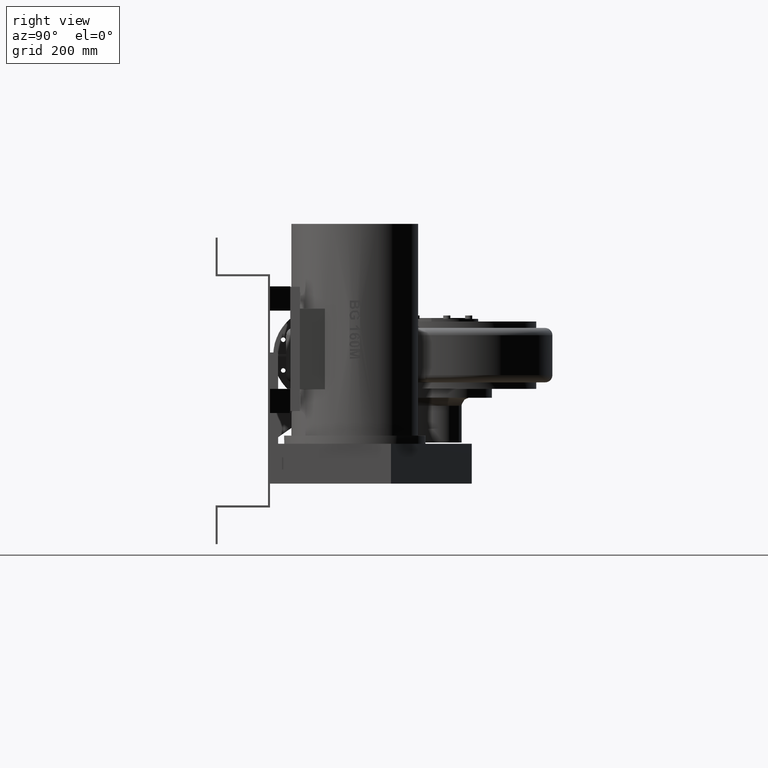
[diagram: clean part render]
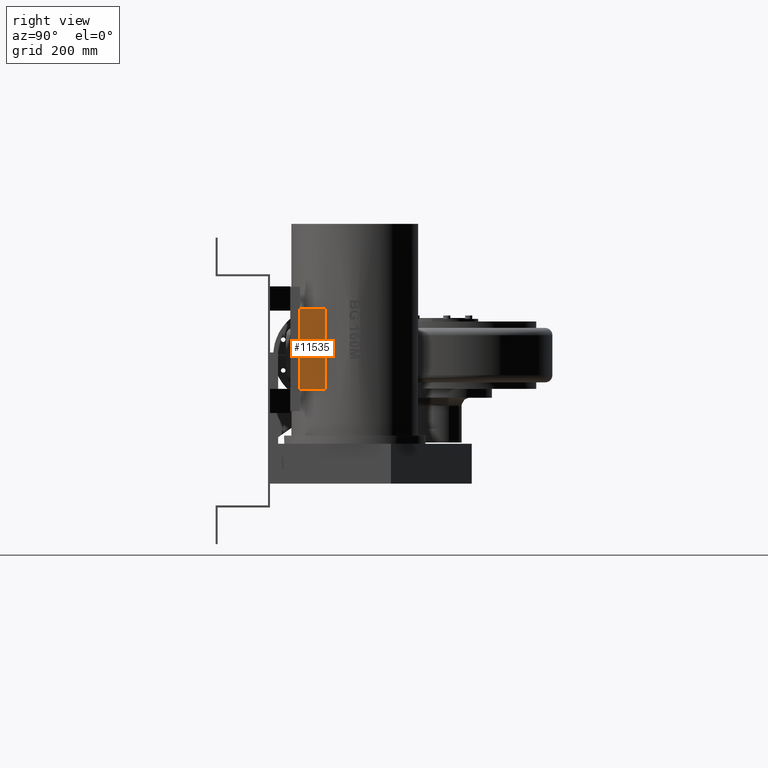
[diagram: same view with one face highlighted and labeled with its STEP entity id]
A machine part, right view. The second image highlights one B-rep face of the part: STEP entity #11535.
In plain terms, the highlighted face is a freeform B-spline surface patch.
Its self-contained STEP definition (entity closure, byte-faithful):
#3991=CARTESIAN_POINT('',(696.000000000000450,-310.999999999999550,-84.499999999997542));
#3992=VERTEX_POINT('',#3991);
#3999=CARTESIAN_POINT('',(696.000000000000450,-310.999999999999550,115.500000000002460));
#4000=VERTEX_POINT('',#3999);
#4001=CARTESIAN_POINT('',(696.000000000000450,-310.999999999999550,115.500000000002460));
#4002=DIRECTION('',(0.0,0.0,-1.0));
#4003=VECTOR('',#4002,200.0);
#4004=LINE('',#4001,#4003);
#4005=EDGE_CURVE('',#4000,#3992,#4004,.T.);
#8738=CARTESIAN_POINT('',(677.442558418529190,-249.044972945718770,-84.499999999997542));
#8739=VERTEX_POINT('',#8738);
#8757=CARTESIAN_POINT('',(677.442558418529070,-249.044972945718770,115.500000000002460));
#8758=VERTEX_POINT('',#8757);
#8766=CARTESIAN_POINT('',(677.442558418529190,-249.044972945718770,115.500000000002460));
#8767=DIRECTION('',(0.0,0.0,-1.0));
#8768=VECTOR('',#8767,200.0);
#8769=LINE('',#8766,#8768);
#8770=EDGE_CURVE('',#8758,#8739,#8769,.T.);
#11503=CARTESIAN_POINT('',(677.442558418529190,-249.044972945718770,-84.499999999997542));
#11504=DIRECTION('',(0.286935540268957,-0.957949892077118,2.197285E-016));
#11505=VECTOR('',#11504,64.674601006472287);
#11506=LINE('',#11503,#11505);
#11507=EDGE_CURVE('',#8739,#3992,#11506,.T.);
#11519=CARTESIAN_POINT('',(677.442558418529070,-249.044972945718770,-84.499999999997556));
#11520=CARTESIAN_POINT('',(677.442558418528960,-249.044972945718770,115.500000000002500));
#11521=CARTESIAN_POINT('',(696.000000000000450,-310.999999999999600,-84.499999999997542));
#11522=CARTESIAN_POINT('',(696.000000000000340,-310.999999999999660,115.500000000002520));
#11523=B_SPLINE_SURFACE_WITH_KNOTS('',1,1,((#11519,#11521),(#11520,#11522)),.UNSPECIFIED.,.F.,.F.,.U.,(2,2),(2,2),(0.0,200.000000000000060),(0.0,64.674601006472344),.UNSPECIFIED.);
#11524=ORIENTED_EDGE('',*,*,#8770,.F.);
#11525=CARTESIAN_POINT('',(696.000000000000570,-310.999999999999550,115.500000000002470));
#11526=DIRECTION('',(-0.286935540268957,0.957949892077118,-2.197285E-016));
#11527=VECTOR('',#11526,64.674601006472315);
#11528=LINE('',#11525,#11527);
#11529=EDGE_CURVE('',#4000,#8758,#11528,.T.);
#11530=ORIENTED_EDGE('',*,*,#11529,.F.);
#11531=ORIENTED_EDGE('',*,*,#4005,.T.);
#11532=ORIENTED_EDGE('',*,*,#11507,.F.);
#11533=EDGE_LOOP('',(#11524,#11530,#11531,#11532));
#11534=FACE_OUTER_BOUND('',#11533,.T.);
#11535=ADVANCED_FACE('',(#11534),#11523,.T.);